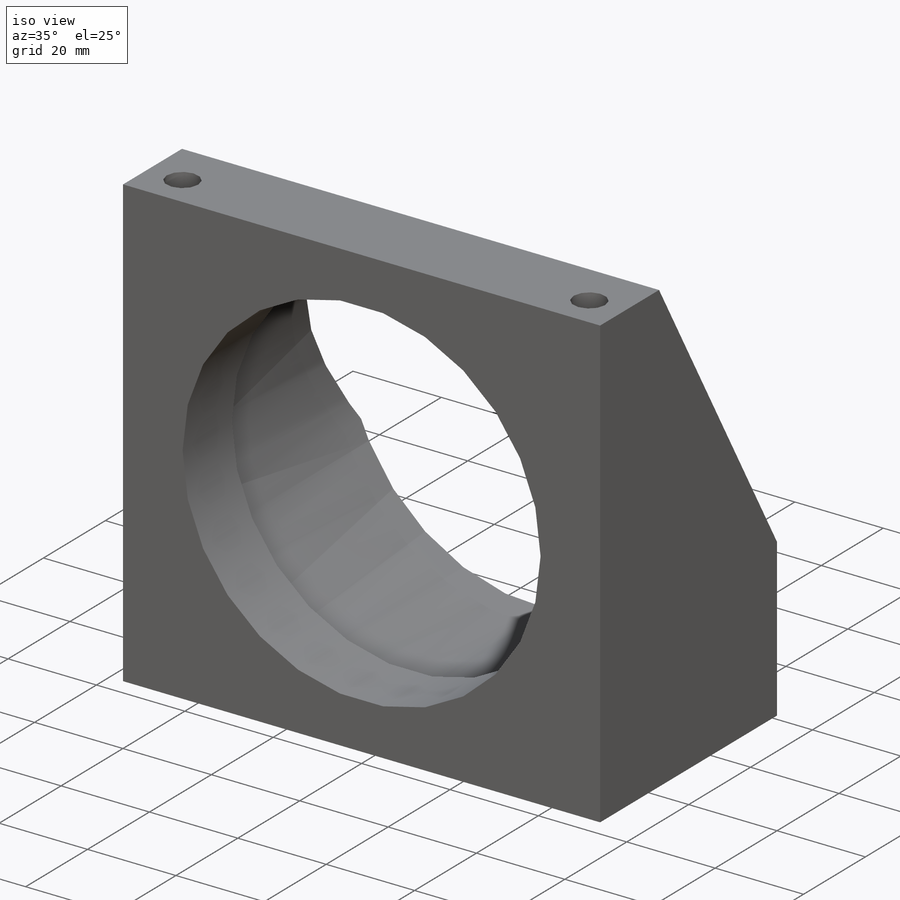
[diagram: iso view]
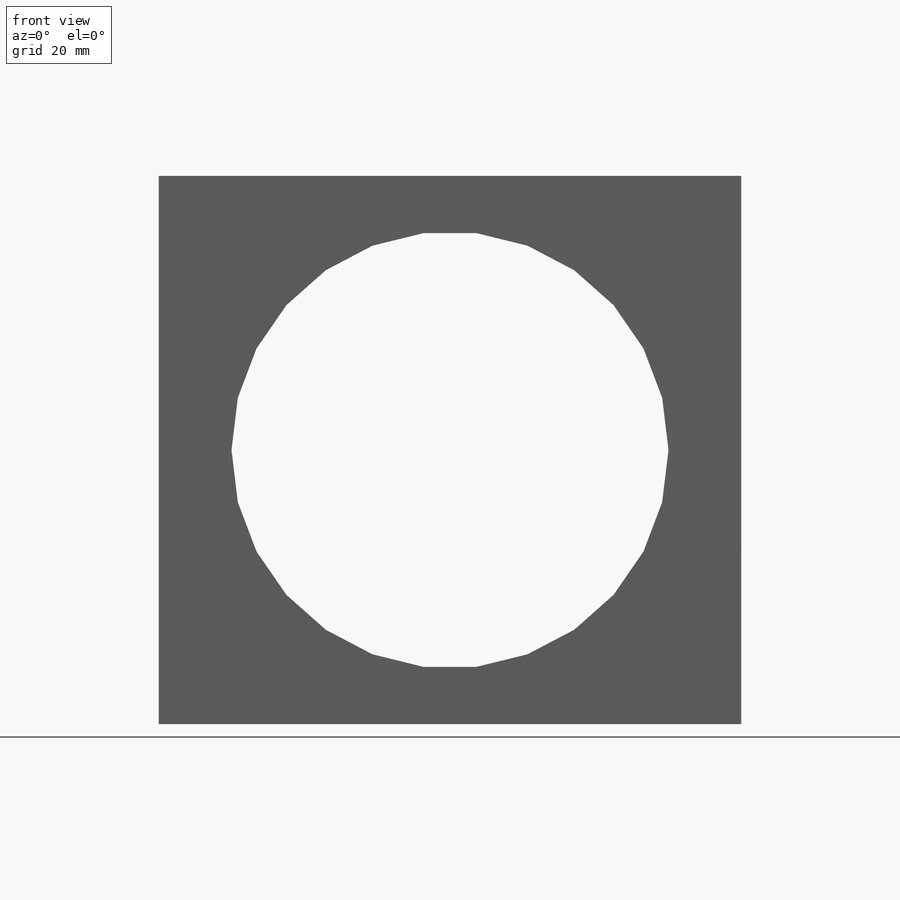
[diagram: front view]
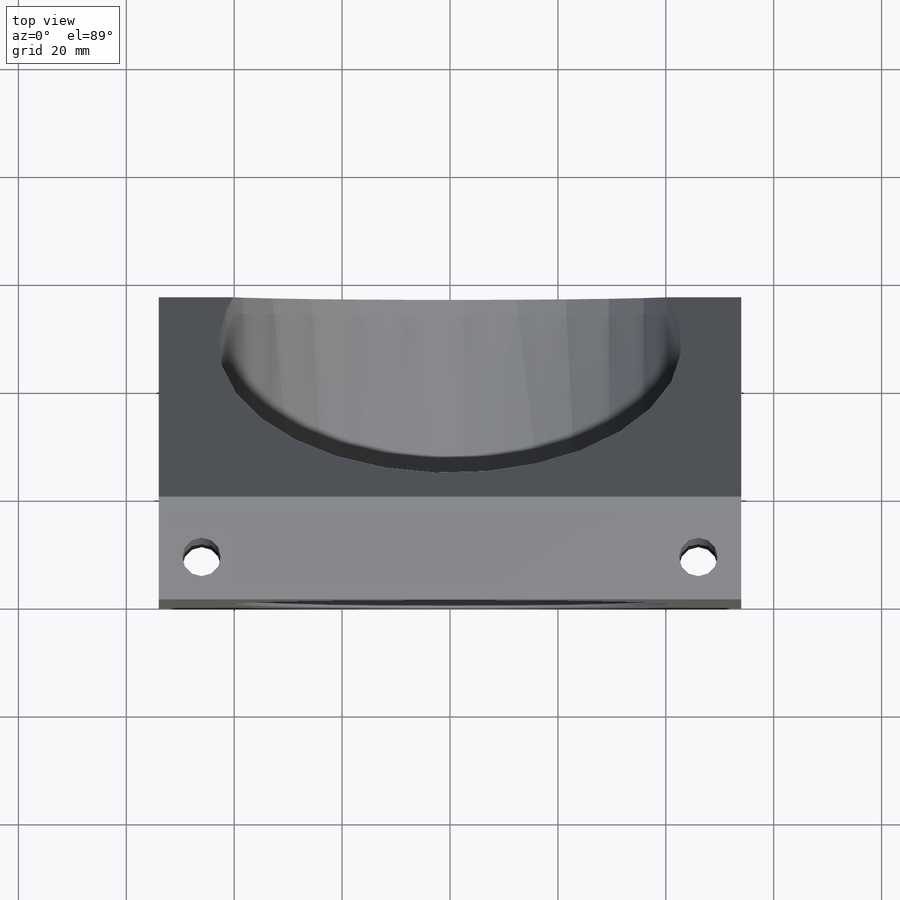
[diagram: top view]
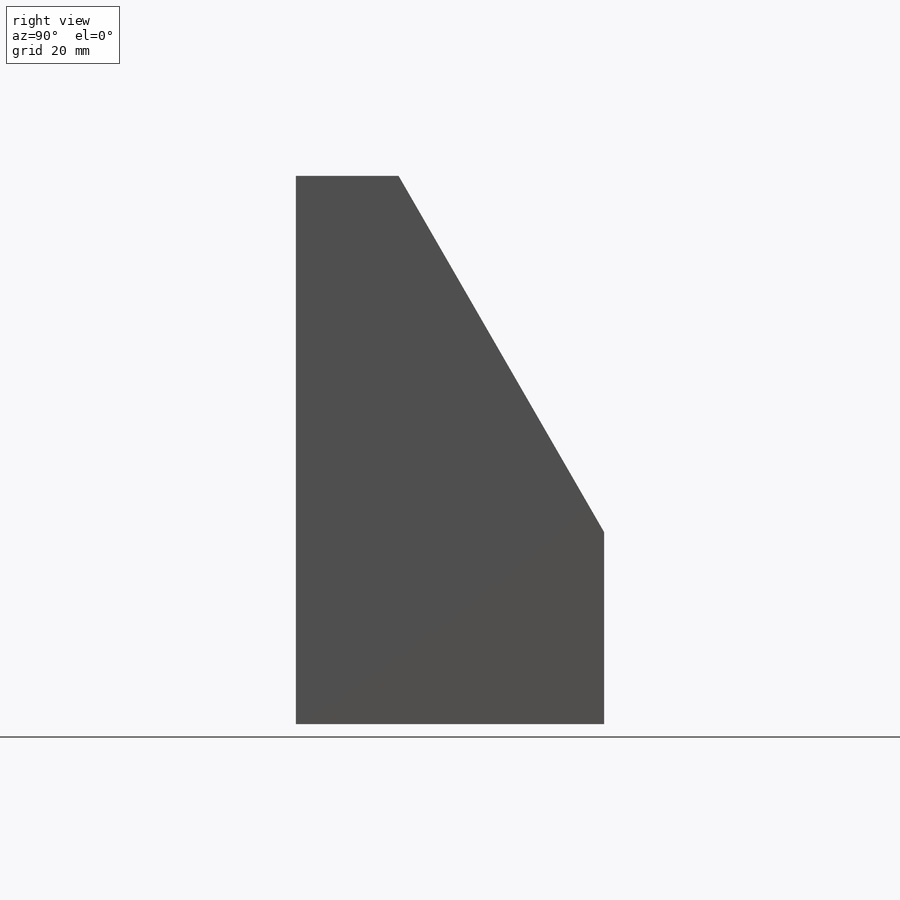
[diagram: right view]
SOLIDWORKS PART (.sldprt)
format: sldprt  version: not decoded by parser v0  size: 191,488 bytes
history: native  units: mm
features: sketch x5, cut_extrude x2, material x1, extrude x1, fillet x1, hole x1 (+13 scaffold rows collapsed)
feature tree (24):
  scaffold x13  (default folders/planes/origin — collapsed)
  material  "Alloy Steel"
  sketch  "Sketch1"  dims[D4=81.0006mm D1=107.95mm D2=101.6mm D3=50.8mm]
  extrude  "Extrude1"  Depth=57.15mm
  sketch  "Sketch2"  dims[D2=19.05mm D3=35.56mm D1=0.0mm]
  cut_extrude  "Cut-Extrude1"  [1 undecoded]
  sketch  "Sketch3"  dims[D1=85.852mm]
  cut_extrude  "Cut-Extrude2"  Depth=15.875mm
  fillet  "Fillet1"  Radius=1.524mm
  hole  "Hole1"  Diameter=7.1374mm Depth=101.6mm
  sketch  "Sketch5"  dims[D1=7.9502mm D2=7.874mm D3=92.075mm]
  sketch  "Sketch4"  dims[Diameter=7.1374mm Depth=101.6mm]
decode coverage: 9 of 10 modeling features carry decoded parameters
note: 1 parameter value undecoded
note: suppression state not decoded; provenance and decode notes live in map.json
